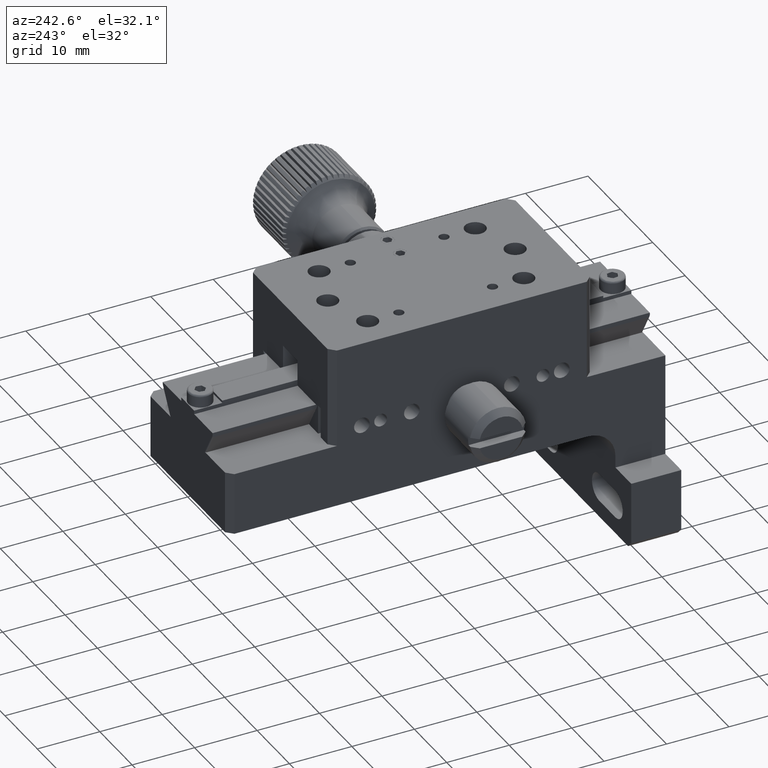
[diagram: clean part render]
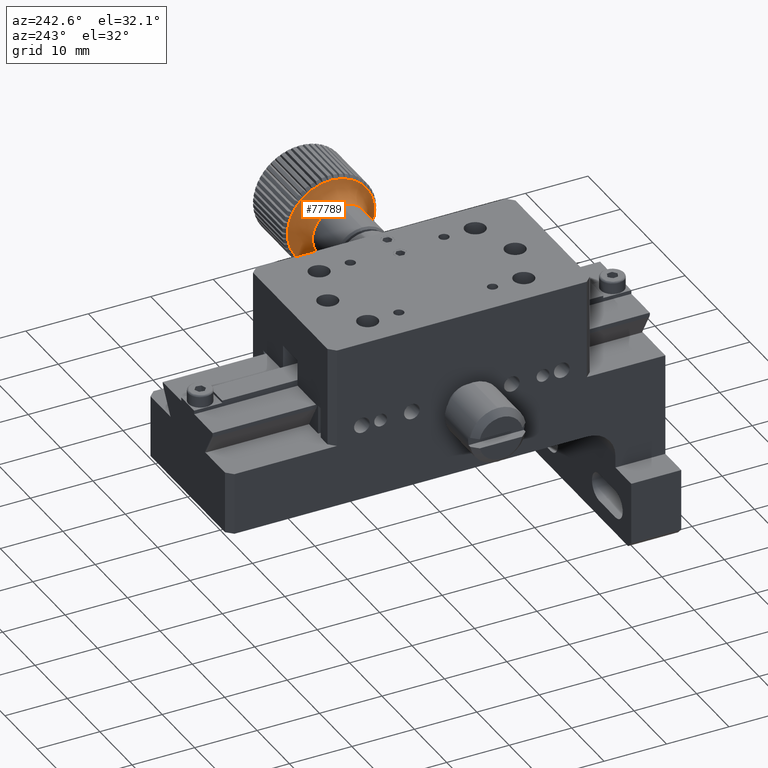
[diagram: same view with one face highlighted and labeled with its STEP entity id]
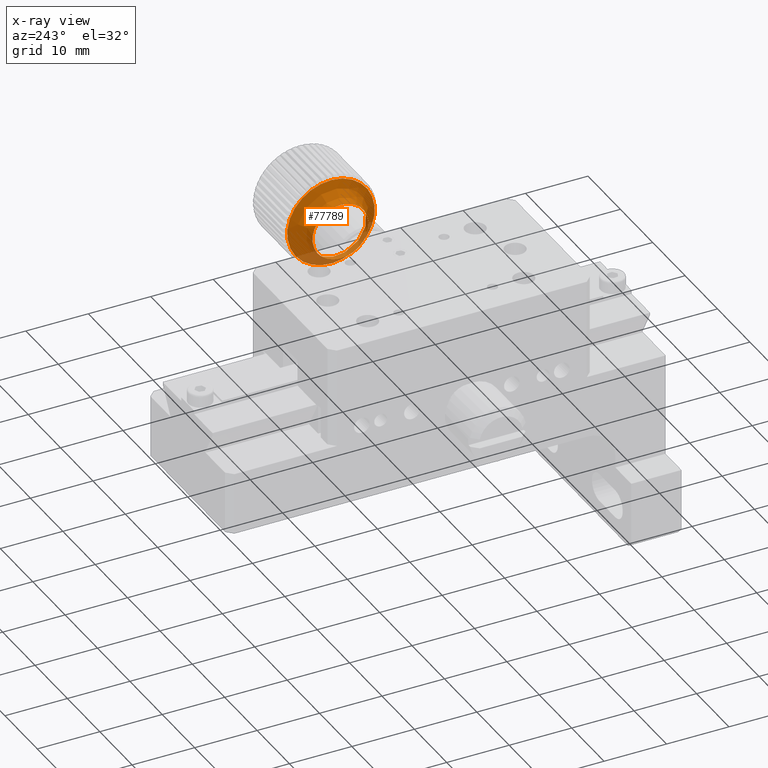
[diagram: x-ray of the same camera — body ghosted, the highlighted face saturated]
A machine part, auxiliary view. The second image highlights one B-rep face of the part: STEP entity #77789.
The next image is the same camera in x-ray: the body ghosted, the highlighted face saturated — about 16% of this face is hidden behind the body in this view.
In plain terms, the highlighted face is a freeform B-spline surface patch.
Its self-contained STEP definition (entity closure, byte-faithful):
#1539 = FACE_OUTER_BOUND ( 'NONE', #60518, .T. ) ;
#2717 = CARTESIAN_POINT ( 'NONE',  ( 92.01116878376225827, 41.25988741623828560, 87.60673220642725312 ) ) ;
#3308 = CARTESIAN_POINT ( 'NONE',  ( 90.58545121988156268, 49.54735044578996650, 91.91578738521228331 ) ) ;
#5472 = CARTESIAN_POINT ( 'NONE',  ( 91.75578172915072628, 34.26078462620598941, 79.01507024269359647 ) ) ;
#10371 = FACE_OUTER_BOUND ( 'NONE', #92330, .T. ) ;
#11546 = CARTESIAN_POINT ( 'NONE',  ( 90.58545121988157689, 42.51972706360615462, 73.05809639192838745 ) ) ;
#12119 = CARTESIAN_POINT ( 'NONE',  ( 90.58545121988160531, 42.96476289425964268, 85.77823566433545466 ) ) ;
#14300 = CARTESIAN_POINT ( 'NONE',  ( 91.75578172915068365, 49.77683823874713909, 78.47221456634885328 ) ) ;
#14876 = CARTESIAN_POINT ( 'NONE',  ( 92.01116878376224406, 50.80719009315778578, 77.36715157071340343 ) ) ;
#17696 = DIRECTION ( 'NONE',  ( 1.000000000000000000, -3.885780586188048878E-16, -5.551115123125783688E-16 ) ) ;
#23147 = CARTESIAN_POINT ( 'NONE',  ( 92.01116878376221564, 40.56760945744395030, 67.81984889379390324 ) ) ;
#30139 = DIRECTION ( 'NONE',  ( 0.000000000000000000, -0.6819501912085349504, 0.7313986168367032636 ) ) ;
#36212 = VERTEX_POINT ( 'NONE', #45616 ) ;
#37456 = CARTESIAN_POINT ( 'NONE',  ( 89.05312889221244177, 36.38217534272931175, 79.64068394345866864 ) ) ;
#38043 = CARTESIAN_POINT ( 'NONE',  ( 90.58545121988160531, 42.96476289425964268, 85.77823566433545466 ) ) ;
#38632 = CARTESIAN_POINT ( 'NONE',  ( 92.01116878376225827, 61.04677072887162836, 86.91445424763290362 ) ) ;
#44776 = DIRECTION ( 'NONE',  ( 0.000000000000000000, -0.6819501912085339512, 0.7313986168367041518 ) ) ;
#45616 = CARTESIAN_POINT ( 'NONE',  ( 89.05312889221244177, 42.96476289425963557, 85.77823566433548308 ) ) ;
#47471 = CARTESIAN_POINT ( 'NONE',  ( 91.75578172915072628, 42.29023927064893229, 86.50166921079180327 ) ) ;
#48058 = CARTESIAN_POINT ( 'NONE',  ( 92.01116878376224406, 51.49946805195215660, 97.15403488334675330 ) ) ;
#50218 = CARTESIAN_POINT ( 'NONE',  ( 91.75578172915072628, 57.80629288319008907, 85.95881353444707429 ) ) ;
#53409 = CARTESIAN_POINT ( 'NONE',  ( 89.05312889221242756, 49.10231461513644291, 79.19564811280517347 ) ) ;
#55617 = CARTESIAN_POINT ( 'NONE',  ( 92.01116878376225827, 41.25988741623828560, 87.60673220642725312 ) ) ;
#55721 = CARTESIAN_POINT ( 'NONE',  ( 89.05312889221242756, 55.68490216666673120, 85.33319983368198791 ) ) ;
#56296 = ORIENTED_EDGE ( 'NONE', *, *, #111383, .F. ) ;
#60518 = EDGE_LOOP ( 'NONE', ( #70464 ) ) ;
#61932 = CIRCLE ( 'NONE', #71367, 4.499999999999994671 ) ;
#65727 = CARTESIAN_POINT ( 'NONE',  ( 91.75578172915072628, 50.31969391509190359, 93.98826817889001006 ) ) ;
#66317 = CARTESIAN_POINT ( 'NONE',  ( 90.58545121988157689, 55.68490216666673120, 85.33319983368198791 ) ) ;
#70464 = ORIENTED_EDGE ( 'NONE', *, *, #84196, .F. ) ;
#71367 = AXIS2_PLACEMENT_3D ( 'NONE', #83772, #92618, #30139 ) ;
#77346 = CARTESIAN_POINT ( 'NONE',  ( 91.75578172915072628, 42.29023927064893229, 86.50166921079180327 ) ) ;
#77789 = ADVANCED_FACE ( 'NONE', ( #1539, #10371 ), #85812, .F. ) ;
#77923 = CARTESIAN_POINT ( 'NONE',  ( 91.75578172915072628, 41.74738359430421042, 70.98561559825064649 ) ) ;
#83413 = CARTESIAN_POINT ( 'NONE',  ( 92.01116878376224406, 31.02030678052441814, 78.05942952950776714 ) ) ;
#83772 = CARTESIAN_POINT ( 'NONE',  ( 89.05312889221244177, 46.03353875469803569, 82.48694188857032827 ) ) ;
#84196 = EDGE_CURVE ( 'NONE', #36212, #36212, #61932, .T. ) ;
#85812 =( BOUNDED_SURFACE ( )  B_SPLINE_SURFACE ( 3, 3, ( 
 ( #115897, #37456, #109349, #53409, #55721, #95029, #103859 ),
 ( #38043, #104436, #11546, #100502, #66317, #3308, #12119 ),
 ( #47471, #5472, #77923, #14300, #50218, #65727, #77346 ),
 ( #2717, #83413, #23147, #14876, #38632, #48058, #91668 ) ),
 .UNSPECIFIED., .F., .T., .T. ) 
 B_SPLINE_SURFACE_WITH_KNOTS ( ( 4, 4 ),
 ( 4, 3, 4 ),
 ( 0.000000000000000000, 1.000000000000000000 ),
 ( 0.000000000000000000, 0.5000000000000000000, 1.000000000000000000 ),
 .UNSPECIFIED. ) 
 GEOMETRIC_REPRESENTATION_ITEM ( )  RATIONAL_B_SPLINE_SURFACE ( (
 ( 1.000000000000000000, 0.3333333333333333148, 0.3333333333333333148, 1.000000000000000000, 0.3333333333333333148, 0.3333333333333333148, 1.000000000000000000),
 ( 0.8425084105506475129, 0.2808361368502158006, 0.2808361368502158006, 0.8425084105506475129, 0.2808361368502158006, 0.2808361368502158006, 0.8425084105506475129),
 ( 0.8425084105506475129, 0.2808361368502158006, 0.2808361368502158006, 0.8425084105506475129, 0.2808361368502158006, 0.2808361368502158006, 0.8425084105506475129),
 ( 1.000000000000000000, 0.3333333333333333148, 0.3333333333333333148, 1.000000000000000000, 0.3333333333333333148, 0.3333333333333333148, 1.000000000000000000) ) ) 
 REPRESENTATION_ITEM ( '' )  SURFACE ( )  );
#86643 = AXIS2_PLACEMENT_3D ( 'NONE', #98417, #17696, #44776 ) ;
#91668 = CARTESIAN_POINT ( 'NONE',  ( 92.01116878376225827, 41.25988741623828560, 87.60673220642725312 ) ) ;
#92330 = EDGE_LOOP ( 'NONE', ( #56296 ) ) ;
#92618 = DIRECTION ( 'NONE',  ( -1.000000000000000000, 3.885780586188048878E-16, 5.551115123125783688E-16 ) ) ;
#93327 = VERTEX_POINT ( 'NONE', #55617 ) ;
#95029 = CARTESIAN_POINT ( 'NONE',  ( 89.05312889221239914, 49.54735044578995229, 91.91578738521229752 ) ) ;
#98417 = CARTESIAN_POINT ( 'NONE',  ( 92.01116878376225827, 46.03353875469802858, 82.48694188857032827 ) ) ;
#99759 = CIRCLE ( 'NONE', #86643, 7.000000000000007994 ) ;
#100502 = CARTESIAN_POINT ( 'NONE',  ( 90.58545121988154847, 49.10231461513642870, 79.19564811280514505 ) ) ;
#103859 = CARTESIAN_POINT ( 'NONE',  ( 89.05312889221244177, 42.96476289425963557, 85.77823566433548308 ) ) ;
#104436 = CARTESIAN_POINT ( 'NONE',  ( 90.58545121988159110, 36.38217534272932596, 79.64068394345871127 ) ) ;
#109349 = CARTESIAN_POINT ( 'NONE',  ( 89.05312889221242756, 42.51972706360614751, 73.05809639192837324 ) ) ;
#111383 = EDGE_CURVE ( 'NONE', #93327, #93327, #99759, .T. ) ;
#115897 = CARTESIAN_POINT ( 'NONE',  ( 89.05312889221244177, 42.96476289425963557, 85.77823566433548308 ) ) ;